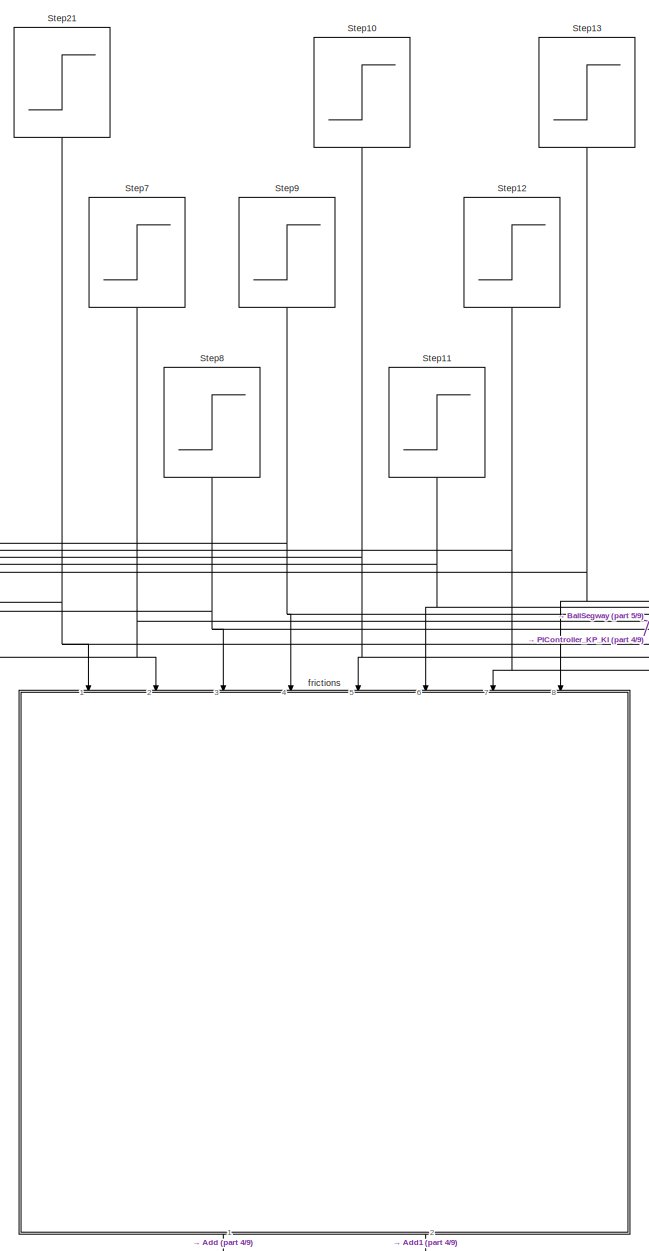
[diagram: root canvas - part 1/9, top left region]
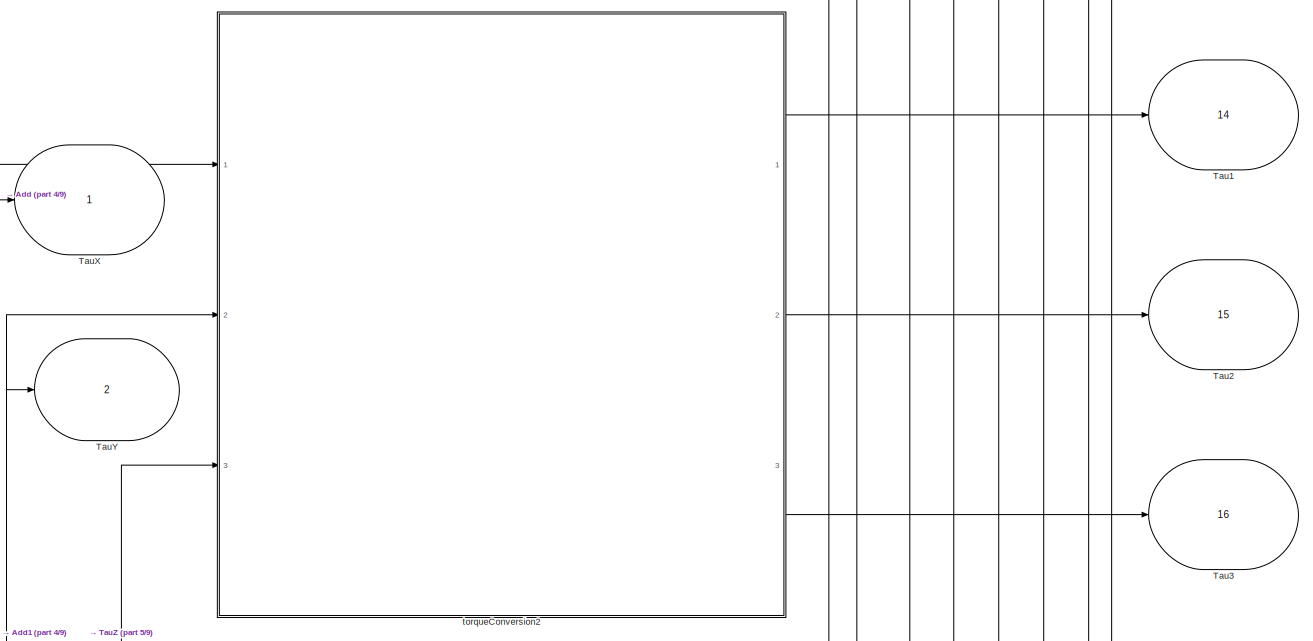
[diagram: root canvas - part 2/9, top center region]
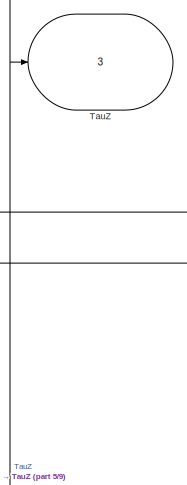
[diagram: root canvas - part 3/9, central region]
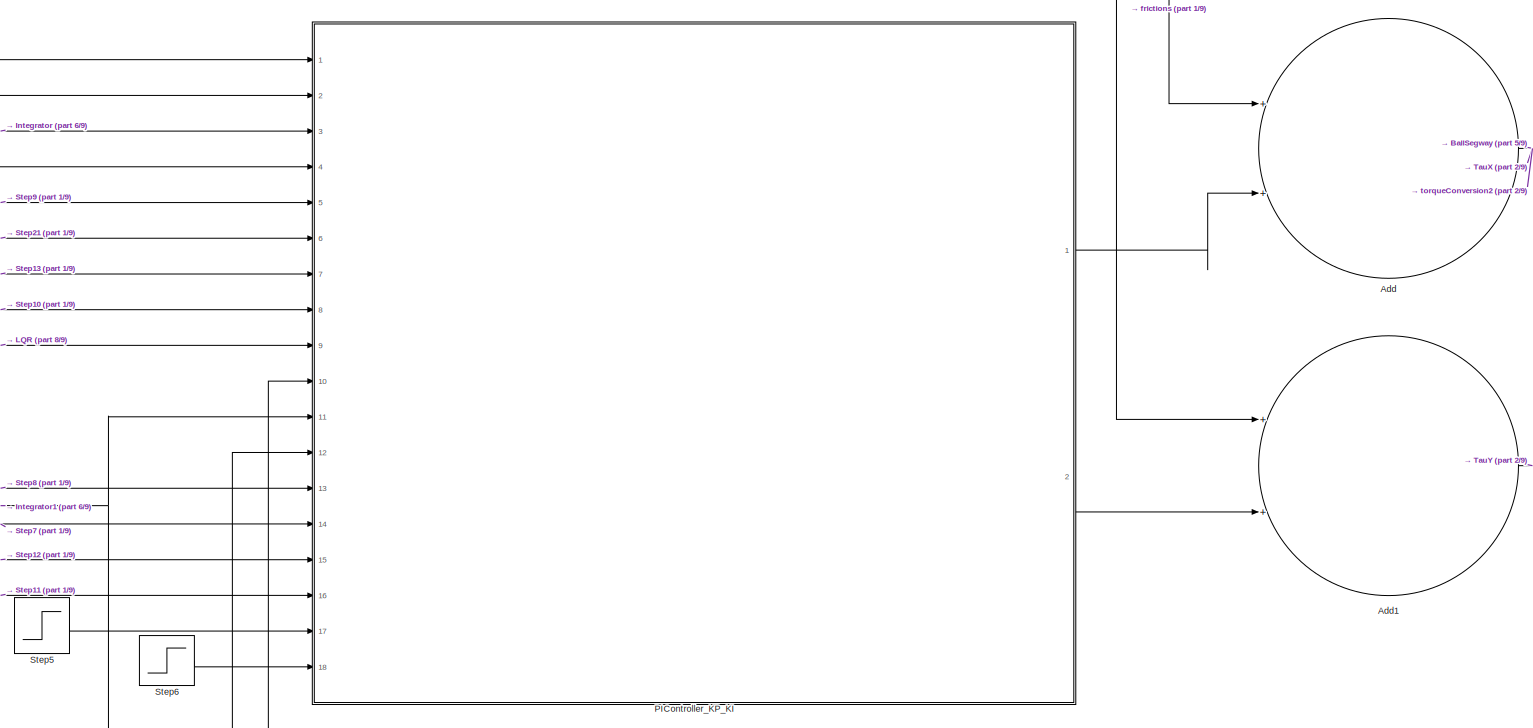
[diagram: root canvas - part 4/9, central region]
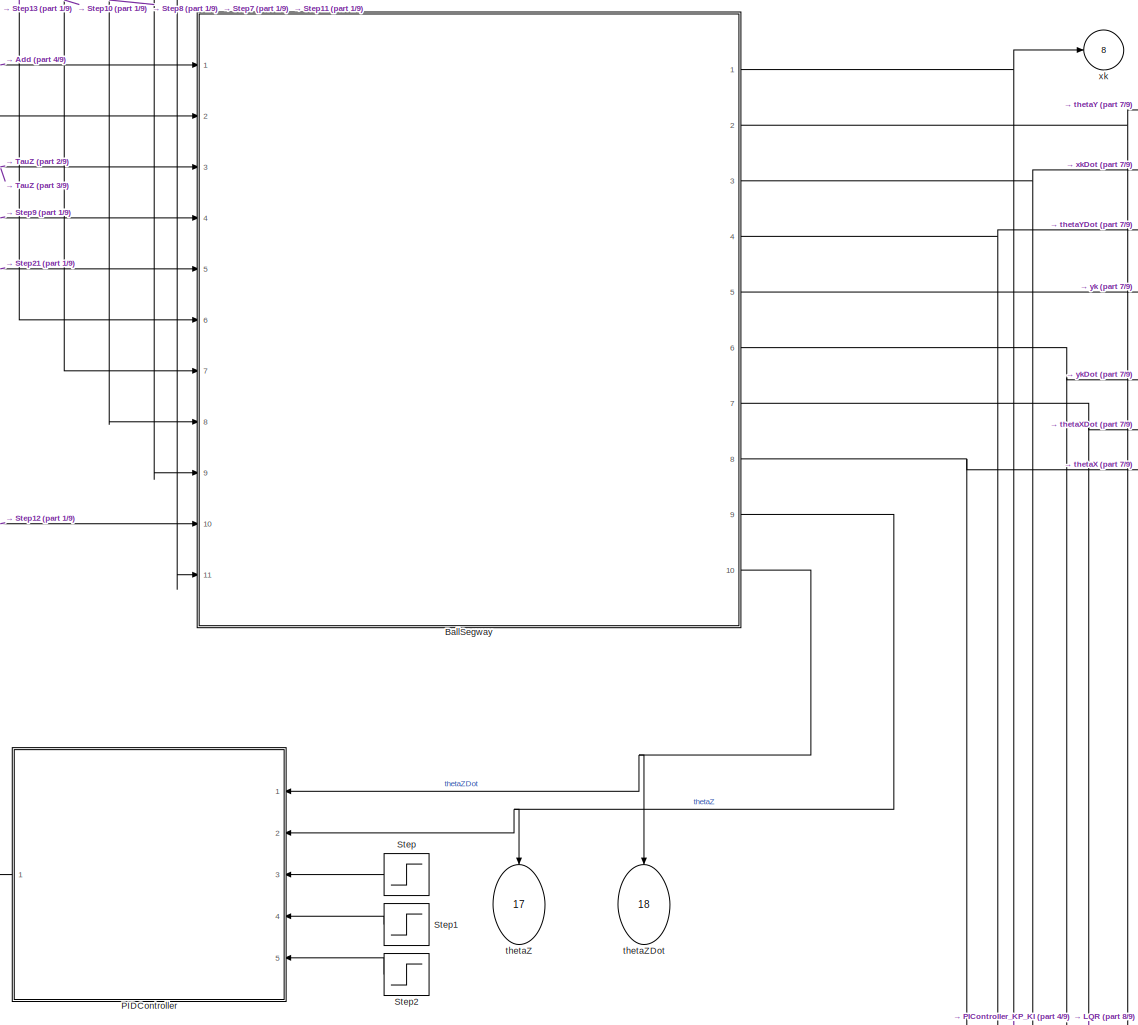
[diagram: root canvas - part 5/9, middle right region]
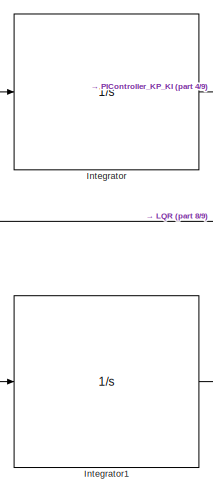
[diagram: root canvas - part 6/9, middle left region]
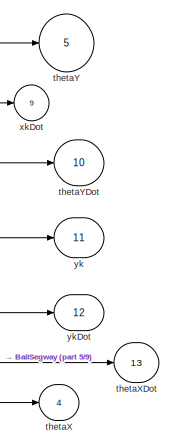
[diagram: root canvas - part 7/9, middle right region]
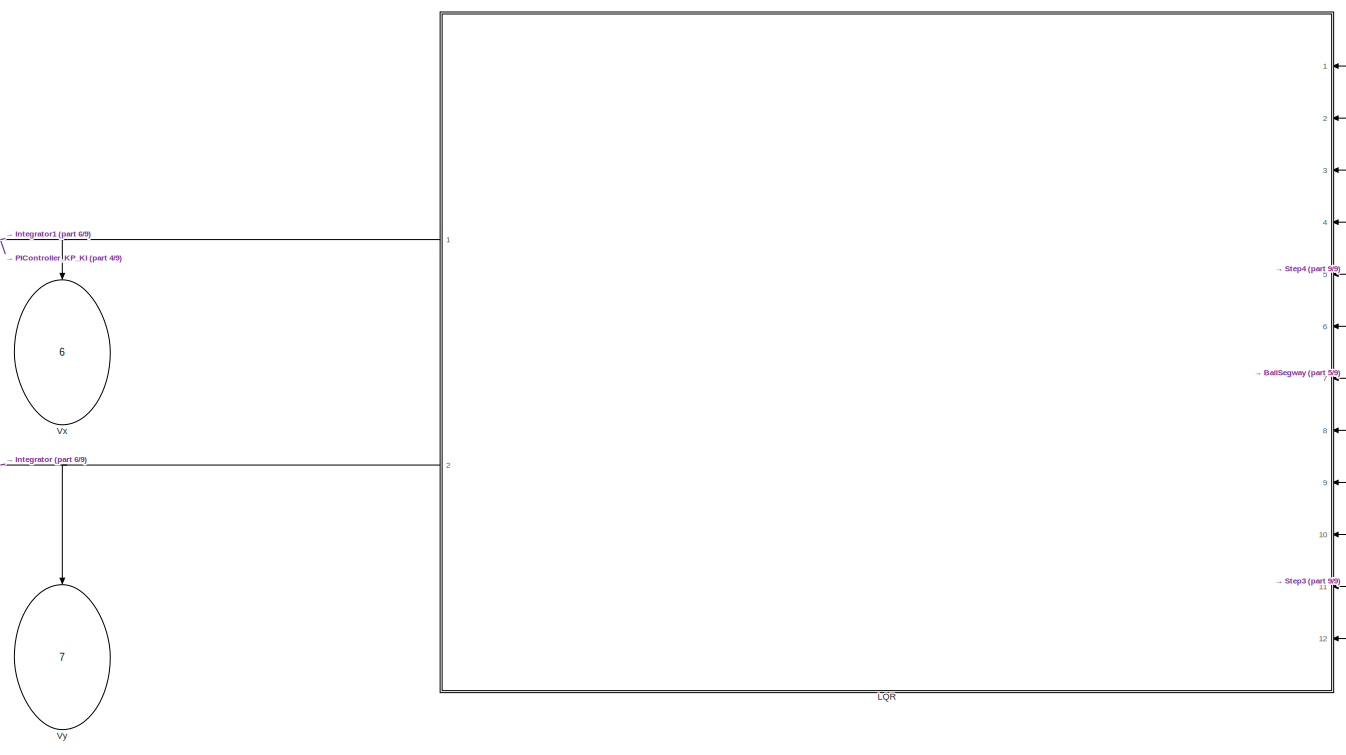
[diagram: root canvas - part 8/9, bottom right region]
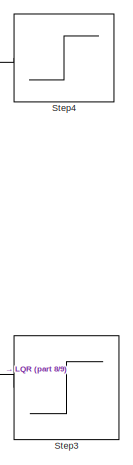
[diagram: root canvas - part 9/9, bottom right region]
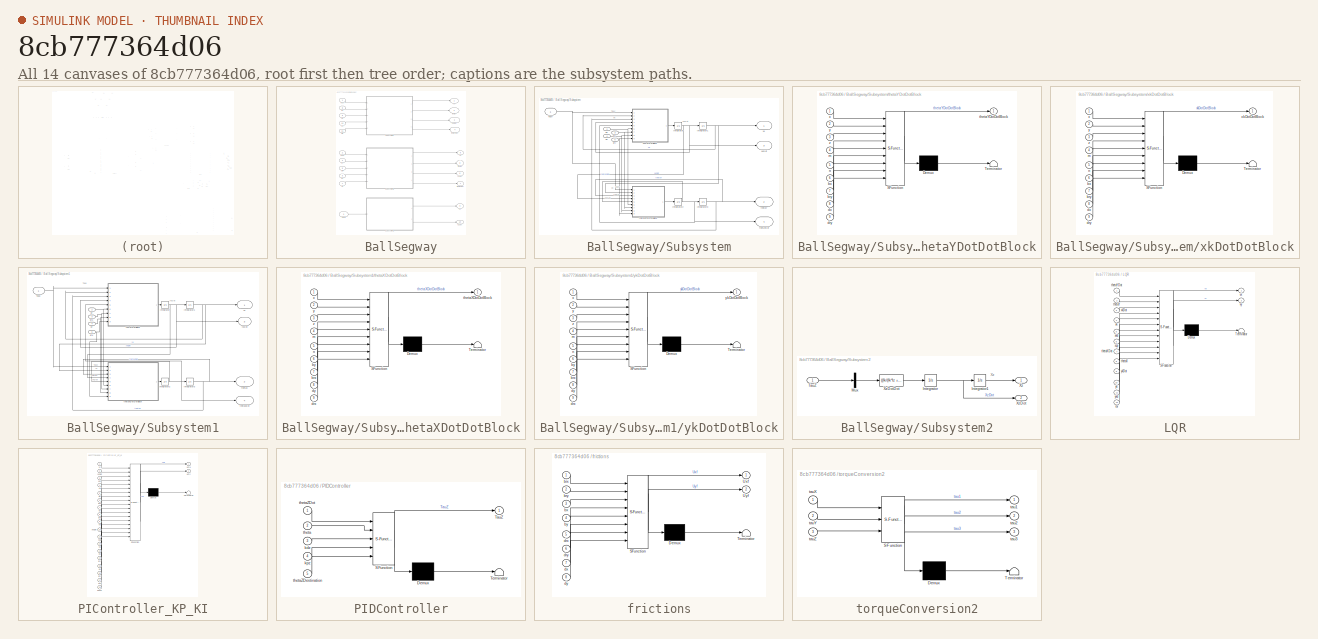
[diagram: thumbnail index - all 14 canvases of the model, root first then tree order]
MODEL slx_8cb777364d06
KIND model
CONFIG AbsTol = auto
CONFIG EnableMultiTasking = off
CONFIG FixedStep = auto
CONFIG MaxStep = auto
CONFIG MinStep = auto
CONFIG RelTol = 1e-3
CONFIG SampleTimeConstraint = Unconstrained
CONFIG Solver = VariableStepAuto
CONFIG SolverName = VariableStepAuto
CONFIG StartTime = 0.0
CONFIG StopTime = 10
BLOCK [Sum] Add
  InputSameDT = off
  OutDataTypeStr = Inherit: Inherit via internal rule
  Ports = [2, 1]
  SaturateOnIntegerOverflow = off
BLOCK [Sum] Add1
  InputSameDT = off
  OutDataTypeStr = Inherit: Inherit via internal rule
  Ports = [2, 1]
  SaturateOnIntegerOverflow = off
BLOCK [SubSystem] BallSegway
  Ports = [11, 10]
  RequestExecContextInheritance = off
BLOCK [SubSystem] BallSegway/Subsystem
  Ports = [5, 4]
  RequestExecContextInheritance = off
BLOCK [Integrator] BallSegway/Subsystem/Integrator
  Ports = [1, 1]
BLOCK [Integrator] BallSegway/Subsystem/Integrator1
  Ports = [1, 1]
BLOCK [Integrator] BallSegway/Subsystem/Integrator2
  Ports = [1, 1]
BLOCK [Integrator] BallSegway/Subsystem/Integrator3
  InitialCondition = (0.1/180)*pi
  Ports = [1, 1]
BLOCK [Inport] BallSegway/Subsystem/TauY
  IconDisplay = Port number
BLOCK [Inport] BallSegway/Subsystem/bry
  IconDisplay = Port number
  Port = 3
BLOCK [Inport] BallSegway/Subsystem/bx
  IconDisplay = Port number
  Port = 2
BLOCK [Inport] BallSegway/Subsystem/dry
  IconDisplay = Port number
  Port = 5
BLOCK [Inport] BallSegway/Subsystem/dx
  IconDisplay = Port number
  Port = 4
BLOCK [Outport] BallSegway/Subsystem/thetaY
  IconDisplay = Port number
  Port = 2
BLOCK [Outport] BallSegway/Subsystem/thetaYDot 
  IconDisplay = Port number
  Port = 4
BLOCK [SubSystem] BallSegway/Subsystem/thetaYDotDotBlock
  ErrorFcn = Stateflow.Translate.translate
  PermitHierarchicalResolution = ExplicitOnly
  Ports = [9, 1]
  RequestExecContextInheritance = off
  SFBlockType = MATLAB Function
  TreatAsAtomicUnit = on
BLOCK [Demux] BallSegway/Subsystem/thetaYDotDotBlock/ Demux 
  Outputs = 1
  Ports = [1, 1]
BLOCK [S-Function] BallSegway/Subsystem/thetaYDotDotBlock/ SFunction 
  EnableBusSupport = on
  FunctionName = sf_sfun
  PortCounts = [9 2]
  Ports = [9, 2]
  SFcnIsStateOwnerBlock = off
  SFunctionDeploymentMode = off
  Tag = Stateflow S-Function AllProject 3
BLOCK [Terminator] BallSegway/Subsystem/thetaYDotDotBlock/ Terminator 
BLOCK [Inport] BallSegway/Subsystem/thetaYDotDotBlock/bry
  IconDisplay = Port number
  Port = 7
BLOCK [Inport] BallSegway/Subsystem/thetaYDotDotBlock/bx
  IconDisplay = Port number
  Port = 6
BLOCK [Inport] BallSegway/Subsystem/thetaYDotDotBlock/dry
  IconDisplay = Port number
  Port = 9
BLOCK [Inport] BallSegway/Subsystem/thetaYDotDotBlock/dx
  IconDisplay = Port number
  Port = 8
BLOCK [Inport] BallSegway/Subsystem/thetaYDotDotBlock/m
  IconDisplay = Port number
  Port = 4
BLOCK [Inport] BallSegway/Subsystem/thetaYDotDotBlock/n
  IconDisplay = Port number
  Port = 5
BLOCK [Outport] BallSegway/Subsystem/thetaYDotDotBlock/thetaYDotDotBlock
  IconDisplay = Port number
BLOCK [Inport] BallSegway/Subsystem/thetaYDotDotBlock/x
  IconDisplay = Port number
BLOCK [Inport] BallSegway/Subsystem/thetaYDotDotBlock/y
  IconDisplay = Port number
  Port = 2
BLOCK [Inport] BallSegway/Subsystem/thetaYDotDotBlock/z
  IconDisplay = Port number
  Port = 3
BLOCK [Outport] BallSegway/Subsystem/xk
  IconDisplay = Port number
BLOCK [Outport] BallSegway/Subsystem/xkDot
  IconDisplay = Port number
  Port = 3
BLOCK [SubSystem] BallSegway/Subsystem/xkDotDotBlock
  ErrorFcn = Stateflow.Translate.translate
  PermitHierarchicalResolution = ExplicitOnly
  Ports = [9, 1]
  RequestExecContextInheritance = off
  SFBlockType = MATLAB Function
  TreatAsAtomicUnit = on
BLOCK [Demux] BallSegway/Subsystem/xkDotDotBlock/ Demux 
  Outputs = 1
  Ports = [1, 1]
BLOCK [S-Function] BallSegway/Subsystem/xkDotDotBlock/ SFunction 
  EnableBusSupport = on
  FunctionName = sf_sfun
  PortCounts = [9 2]
  Ports = [9, 2]
  SFcnIsStateOwnerBlock = off
  SFunctionDeploymentMode = off
  Tag = Stateflow S-Function AllProject 10
BLOCK [Terminator] BallSegway/Subsystem/xkDotDotBlock/ Terminator 
BLOCK [Inport] BallSegway/Subsystem/xkDotDotBlock/bry
  IconDisplay = Port number
  Port = 7
BLOCK [Inport] BallSegway/Subsystem/xkDotDotBlock/bx
  IconDisplay = Port number
  Port = 6
BLOCK [Inport] BallSegway/Subsystem/xkDotDotBlock/dry
  IconDisplay = Port number
  Port = 9
BLOCK [Inport] BallSegway/Subsystem/xkDotDotBlock/dx
  IconDisplay = Port number
  Port = 8
BLOCK [Inport] BallSegway/Subsystem/xkDotDotBlock/m
  IconDisplay = Port number
  Port = 4
BLOCK [Inport] BallSegway/Subsystem/xkDotDotBlock/n
  IconDisplay = Port number
  Port = 5
BLOCK [Inport] BallSegway/Subsystem/xkDotDotBlock/x
  IconDisplay = Port number
BLOCK [Outport] BallSegway/Subsystem/xkDotDotBlock/xkDotDotBlock
  IconDisplay = Port number
BLOCK [Inport] BallSegway/Subsystem/xkDotDotBlock/y
  IconDisplay = Port number
  Port = 2
BLOCK [Inport] BallSegway/Subsystem/xkDotDotBlock/z
  IconDisplay = Port number
  Port = 3
BLOCK [SubSystem] BallSegway/Subsystem1
  Ports = [5, 4]
  RequestExecContextInheritance = off
BLOCK [Integrator] BallSegway/Subsystem1/Integrator
  Ports = [1, 1]
BLOCK [Integrator] BallSegway/Subsystem1/Integrator1
  Ports = [1, 1]
BLOCK [Integrator] BallSegway/Subsystem1/Integrator2
  Ports = [1, 1]
BLOCK [Integrator] BallSegway/Subsystem1/Integrator3
  InitialCondition = (0.1/180)*pi
  Ports = [1, 1]
BLOCK [Inport] BallSegway/Subsystem1/Taux
  IconDisplay = Port number
BLOCK [Inport] BallSegway/Subsystem1/brx
  IconDisplay = Port number
  Port = 3
BLOCK [Inport] BallSegway/Subsystem1/by
  IconDisplay = Port number
  Port = 2
BLOCK [Inport] BallSegway/Subsystem1/drx
  IconDisplay = Port number
  Port = 5
BLOCK [Inport] BallSegway/Subsystem1/dy
  IconDisplay = Port number
  Port = 4
BLOCK [Outport] BallSegway/Subsystem1/thetaX
  IconDisplay = Port number
  Port = 2
BLOCK [Outport] BallSegway/Subsystem1/thetaXDot 
  IconDisplay = Port number
  Port = 4
BLOCK [SubSystem] BallSegway/Subsystem1/thetaXDotDotBlock
  ErrorFcn = Stateflow.Translate.translate
  PermitHierarchicalResolution = ExplicitOnly
  Ports = [9, 1]
  RequestExecContextInheritance = off
  SFBlockType = MATLAB Function
  TreatAsAtomicUnit = on
BLOCK [Demux] BallSegway/Subsystem1/thetaXDotDotBlock/ Demux 
  Outputs = 1
  Ports = [1, 1]
BLOCK [S-Function] BallSegway/Subsystem1/thetaXDotDotBlock/ SFunction 
  EnableBusSupport = on
  FunctionName = sf_sfun
  PortCounts = [9 2]
  Ports = [9, 2]
  SFcnIsStateOwnerBlock = off
  SFunctionDeploymentMode = off
  Tag = Stateflow S-Function AllProject 1
BLOCK [Terminator] BallSegway/Subsystem1/thetaXDotDotBlock/ Terminator 
BLOCK [Inport] BallSegway/Subsystem1/thetaXDotDotBlock/brx
  IconDisplay = Port number
  Port = 7
BLOCK [Inport] BallSegway/Subsystem1/thetaXDotDotBlock/by
  IconDisplay = Port number
  Port = 6
BLOCK [Inport] BallSegway/Subsystem1/thetaXDotDotBlock/drx
  IconDisplay = Port number
  Port = 9
BLOCK [Inport] BallSegway/Subsystem1/thetaXDotDotBlock/dy
  IconDisplay = Port number
  Port = 8
BLOCK [Inport] BallSegway/Subsystem1/thetaXDotDotBlock/m
  IconDisplay = Port number
  Port = 4
BLOCK [Inport] BallSegway/Subsystem1/thetaXDotDotBlock/n
  IconDisplay = Port number
  Port = 5
BLOCK [Outport] BallSegway/Subsystem1/thetaXDotDotBlock/thetaXDotDotBlock
  IconDisplay = Port number
BLOCK [Inport] BallSegway/Subsystem1/thetaXDotDotBlock/x
  IconDisplay = Port number
BLOCK [Inport] BallSegway/Subsystem1/thetaXDotDotBlock/y
  IconDisplay = Port number
  Port = 2
BLOCK [Inport] BallSegway/Subsystem1/thetaXDotDotBlock/z
  IconDisplay = Port number
  Port = 3
BLOCK [Outport] BallSegway/Subsystem1/yk
  IconDisplay = Port number
BLOCK [Outport] BallSegway/Subsystem1/ykDot
  IconDisplay = Port number
  Port = 3
BLOCK [SubSystem] BallSegway/Subsystem1/ykDotDotBlock
  ErrorFcn = Stateflow.Translate.translate
  PermitHierarchicalResolution = ExplicitOnly
  Ports = [9, 1]
  RequestExecContextInheritance = off
  SFBlockType = MATLAB Function
  TreatAsAtomicUnit = on
BLOCK [Demux] BallSegway/Subsystem1/ykDotDotBlock/ Demux 
  Outputs = 1
  Ports = [1, 1]
BLOCK [S-Function] BallSegway/Subsystem1/ykDotDotBlock/ SFunction 
  EnableBusSupport = on
  FunctionName = sf_sfun
  PortCounts = [9 2]
  Ports = [9, 2]
  SFcnIsStateOwnerBlock = off
  SFunctionDeploymentMode = off
  Tag = Stateflow S-Function AllProject 9
BLOCK [Terminator] BallSegway/Subsystem1/ykDotDotBlock/ Terminator 
BLOCK [Inport] BallSegway/Subsystem1/ykDotDotBlock/brx
  IconDisplay = Port number
  Port = 7
BLOCK [Inport] BallSegway/Subsystem1/ykDotDotBlock/by
  IconDisplay = Port number
  Port = 6
BLOCK [Inport] BallSegway/Subsystem1/ykDotDotBlock/drx
  IconDisplay = Port number
  Port = 9
BLOCK [Inport] BallSegway/Subsystem1/ykDotDotBlock/dy
  IconDisplay = Port number
  Port = 8
BLOCK [Inport] BallSegway/Subsystem1/ykDotDotBlock/m
  IconDisplay = Port number
  Port = 4
BLOCK [Inport] BallSegway/Subsystem1/ykDotDotBlock/n
  IconDisplay = Port number
  Port = 5
BLOCK [Inport] BallSegway/Subsystem1/ykDotDotBlock/x
  IconDisplay = Port number
BLOCK [Inport] BallSegway/Subsystem1/ykDotDotBlock/y
  IconDisplay = Port number
  Port = 2
BLOCK [Outport] BallSegway/Subsystem1/ykDotDotBlock/ykDotDotBlock
  IconDisplay = Port number
BLOCK [Inport] BallSegway/Subsystem1/ykDotDotBlock/z
  IconDisplay = Port number
  Port = 3
BLOCK [SubSystem] BallSegway/Subsystem2
  Ports = [1, 2]
  RequestExecContextInheritance = off
BLOCK [Integrator] BallSegway/Subsystem2/Integrator
  ContinuousStateAttributes = 'XzDot'
  Ports = [1, 1]
BLOCK [Integrator] BallSegway/Subsystem2/Integrator1
  ContinuousStateAttributes = 'Xz'
  Ports = [1, 1]
BLOCK [Mux] BallSegway/Subsystem2/Mux
  DisplayOption = bar
  Inputs = 1
  Ports = [1, 1]
BLOCK [Inport] BallSegway/Subsystem2/TauZ
  IconDisplay = Port number
BLOCK [Outport] BallSegway/Subsystem2/Xz
  IconDisplay = Port number
BLOCK [Outport] BallSegway/Subsystem2/XzDot
  IconDisplay = Port number
  Port = 2
BLOCK [Fcn] BallSegway/Subsystem2/XzDotDot
  Expr = ((Ik/(Ik*Iz + 3*(Ik+Iz)*Iw*((rk^2)/(rw^2))*(sin(alphaTemperature)^2)))*(rk/rw))*u(1)
BLOCK [Inport] BallSegway/TauY
  IconDisplay = Port number
BLOCK [Inport] BallSegway/TauZ
  IconDisplay = Port number
  Port = 3
BLOCK [Inport] BallSegway/Taux
  IconDisplay = Port number
  Port = 2
BLOCK [Outport] BallSegway/Xz
  IconDisplay = Port number
  Port = 9
BLOCK [Outport] BallSegway/XzDot
  IconDisplay = Port number
  Port = 10
BLOCK [Inport] BallSegway/brx
  IconDisplay = Port number
  Port = 5
BLOCK [Inport] BallSegway/bry
  IconDisplay = Port number
  Port = 9
BLOCK [Inport] BallSegway/bx
  IconDisplay = Port number
  Port = 8
BLOCK [Inport] BallSegway/by
  IconDisplay = Port number
  Port = 4
BLOCK [Inport] BallSegway/drx
  IconDisplay = Port number
  Port = 7
BLOCK [Inport] BallSegway/dry
  IconDisplay = Port number
  Port = 11
BLOCK [Inport] BallSegway/dx
  IconDisplay = Port number
  Port = 10
BLOCK [Inport] BallSegway/dy
  IconDisplay = Port number
  Port = 6
BLOCK [Outport] BallSegway/thetaX 
  IconDisplay = Port number
  Port = 8
BLOCK [Outport] BallSegway/thetaXDot 
  IconDisplay = Port number
  Port = 7
BLOCK [Outport] BallSegway/thetaY
  IconDisplay = Port number
  Port = 2
BLOCK [Outport] BallSegway/thetaYDot 
  IconDisplay = Port number
  Port = 4
BLOCK [Outport] BallSegway/xk
  IconDisplay = Port number
BLOCK [Outport] BallSegway/xkDot
  IconDisplay = Port number
  Port = 3
BLOCK [Outport] BallSegway/yk
  IconDisplay = Port number
  Port = 5
BLOCK [Outport] BallSegway/ykDot
  IconDisplay = Port number
  Port = 6
BLOCK [Integrator] Integrator
  Ports = [1, 1]
BLOCK [Integrator] Integrator1
  Ports = [1, 1]
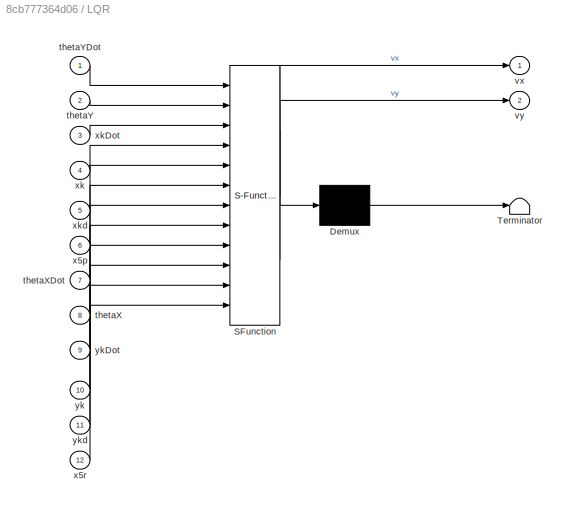
BLOCK [SubSystem] LQR
  ErrorFcn = Stateflow.Translate.translate
  PermitHierarchicalResolution = ExplicitOnly
  Ports = [12, 2]
  RequestExecContextInheritance = off
  SFBlockType = MATLAB Function
  TreatAsAtomicUnit = on
BLOCK [Demux] LQR/ Demux 
  Outputs = 1
  Ports = [1, 1]
BLOCK [S-Function] LQR/ SFunction 
  EnableBusSupport = on
  FunctionName = sf_sfun
  PortCounts = [12 3]
  Ports = [12, 3]
  SFcnIsStateOwnerBlock = off
  SFunctionDeploymentMode = off
  Tag = Stateflow S-Function AllProject 7
BLOCK [Terminator] LQR/ Terminator 
BLOCK [Inport] LQR/thetaX
  IconDisplay = Port number
  Port = 8
BLOCK [Inport] LQR/thetaXDot
  IconDisplay = Port number
  Port = 7
BLOCK [Inport] LQR/thetaY
  IconDisplay = Port number
  Port = 2
BLOCK [Inport] LQR/thetaYDot
  IconDisplay = Port number
BLOCK [Outport] LQR/vx
  IconDisplay = Port number
BLOCK [Outport] LQR/vy
  IconDisplay = Port number
  Port = 2
BLOCK [Inport] LQR/x5p
  IconDisplay = Port number
  Port = 6
BLOCK [Inport] LQR/x5r
  IconDisplay = Port number
  Port = 12
BLOCK [Inport] LQR/xk
  IconDisplay = Port number
  Port = 4
BLOCK [Inport] LQR/xkDot
  IconDisplay = Port number
  Port = 3
BLOCK [Inport] LQR/xkd
  IconDisplay = Port number
  Port = 5
BLOCK [Inport] LQR/yk
  IconDisplay = Port number
  Port = 10
BLOCK [Inport] LQR/ykDot
  IconDisplay = Port number
  Port = 9
BLOCK [Inport] LQR/ykd
  IconDisplay = Port number
  Port = 11
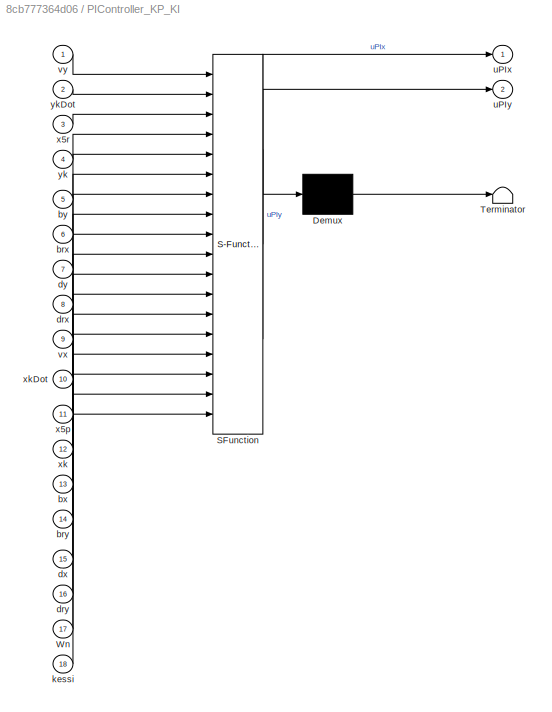
BLOCK [SubSystem] PIController_KP_KI
  ErrorFcn = Stateflow.Translate.translate
  PermitHierarchicalResolution = ExplicitOnly
  Ports = [18, 2]
  RequestExecContextInheritance = off
  SFBlockType = MATLAB Function
  TreatAsAtomicUnit = on
BLOCK [Demux] PIController_KP_KI/ Demux 
  Outputs = 1
  Ports = [1, 1]
BLOCK [S-Function] PIController_KP_KI/ SFunction 
  EnableBusSupport = on
  FunctionName = sf_sfun
  PortCounts = [18 3]
  Ports = [18, 3]
  SFcnIsStateOwnerBlock = off
  SFunctionDeploymentMode = off
  Tag = Stateflow S-Function AllProject 6
BLOCK [Terminator] PIController_KP_KI/ Terminator 
BLOCK [Inport] PIController_KP_KI/Wn
  IconDisplay = Port number
  Port = 17
BLOCK [Inport] PIController_KP_KI/brx
  IconDisplay = Port number
  Port = 6
BLOCK [Inport] PIController_KP_KI/bry
  IconDisplay = Port number
  Port = 14
BLOCK [Inport] PIController_KP_KI/bx
  IconDisplay = Port number
  Port = 13
BLOCK [Inport] PIController_KP_KI/by
  IconDisplay = Port number
  Port = 5
BLOCK [Inport] PIController_KP_KI/drx
  IconDisplay = Port number
  Port = 8
BLOCK [Inport] PIController_KP_KI/dry
  IconDisplay = Port number
  Port = 16
BLOCK [Inport] PIController_KP_KI/dx
  IconDisplay = Port number
  Port = 15
BLOCK [Inport] PIController_KP_KI/dy
  IconDisplay = Port number
  Port = 7
BLOCK [Inport] PIController_KP_KI/kessi
  IconDisplay = Port number
  Port = 18
BLOCK [Outport] PIController_KP_KI/uPIx
  IconDisplay = Port number
BLOCK [Outport] PIController_KP_KI/uPIy
  IconDisplay = Port number
  Port = 2
BLOCK [Inport] PIController_KP_KI/vx
  IconDisplay = Port number
  Port = 9
BLOCK [Inport] PIController_KP_KI/vy
  IconDisplay = Port number
BLOCK [Inport] PIController_KP_KI/x5p
  IconDisplay = Port number
  Port = 11
BLOCK [Inport] PIController_KP_KI/x5r
  IconDisplay = Port number
  Port = 3
BLOCK [Inport] PIController_KP_KI/xk
  IconDisplay = Port number
  Port = 12
BLOCK [Inport] PIController_KP_KI/xkDot
  IconDisplay = Port number
  Port = 10
BLOCK [Inport] PIController_KP_KI/yk
  IconDisplay = Port number
  Port = 4
BLOCK [Inport] PIController_KP_KI/ykDot
  IconDisplay = Port number
  Port = 2
BLOCK [SubSystem] PIDController
  ErrorFcn = Stateflow.Translate.translate
  PermitHierarchicalResolution = ExplicitOnly
  Ports = [5, 1]
  RequestExecContextInheritance = off
  SFBlockType = MATLAB Function
  TreatAsAtomicUnit = on
BLOCK [Demux] PIDController/ Demux 
  Outputs = 1
  Ports = [1, 1]
BLOCK [S-Function] PIDController/ SFunction 
  EnableBusSupport = on
  FunctionName = sf_sfun
  PortCounts = [5 2]
  Ports = [5, 2]
  SFcnIsStateOwnerBlock = off
  SFunctionDeploymentMode = off
  Tag = Stateflow S-Function AllProject 5
BLOCK [Terminator] PIDController/ Terminator 
BLOCK [Outport] PIDController/TauZ
  IconDisplay = Port number
BLOCK [Inport] PIDController/kdz
  IconDisplay = Port number
  Port = 3
BLOCK [Inport] PIDController/kpz
  IconDisplay = Port number
  Port = 4
BLOCK [Inport] PIDController/theta
  IconDisplay = Port number
  Port = 2
BLOCK [Inport] PIDController/thetaZDestination
  IconDisplay = Port number
  Port = 5
BLOCK [Inport] PIDController/thetaZDot
  IconDisplay = Port number
BLOCK [Step] Step
  SampleTime = 0
BLOCK [Step] Step1
  SampleTime = 0
BLOCK [Step] Step10
  After = 1000
  SampleTime = 0
BLOCK [Step] Step11
  After = 1000
  SampleTime = 0
BLOCK [Step] Step12
  After = 1000
  SampleTime = 0
BLOCK [Step] Step13
  After = 1000
  SampleTime = 0
BLOCK [Step] Step2
  After = pi/6
  SampleTime = 0
BLOCK [Step] Step21
  After = 100
  SampleTime = 0
BLOCK [Step] Step3
  After = 0
  SampleTime = 0
  Time = 0
BLOCK [Step] Step4
  After = 0
  SampleTime = 0
  Time = 0
BLOCK [Step] Step5
  After = 2.5
  SampleTime = 0
BLOCK [Step] Step6
  After = 0.2
  SampleTime = 0
BLOCK [Step] Step7
  After = 100
  SampleTime = 0
BLOCK [Step] Step8
  After = 100
  SampleTime = 0
BLOCK [Step] Step9
  After = 100
  SampleTime = 0
BLOCK [Outport] Tau1
  IconDisplay = Port number
  Port = 14
BLOCK [Outport] Tau2
  IconDisplay = Port number
  Port = 15
BLOCK [Outport] Tau3
  IconDisplay = Port number
  Port = 16
BLOCK [Outport] TauX
  IconDisplay = Port number
BLOCK [Outport] TauY
  IconDisplay = Port number
  Port = 2
BLOCK [Outport] TauZ
  IconDisplay = Port number
  Port = 3
BLOCK [Outport] Vx
  IconDisplay = Port number
  Port = 6
BLOCK [Outport] Vy
  IconDisplay = Port number
  Port = 7
BLOCK [SubSystem] frictions
  ErrorFcn = Stateflow.Translate.translate
  PermitHierarchicalResolution = ExplicitOnly
  Ports = [8, 2]
  RequestExecContextInheritance = off
  SFBlockType = MATLAB Function
  TreatAsAtomicUnit = on
BLOCK [Demux] frictions/ Demux 
  Outputs = 1
  Ports = [1, 1]
BLOCK [S-Function] frictions/ SFunction 
  EnableBusSupport = on
  FunctionName = sf_sfun
  PortCounts = [8 3]
  Ports = [8, 3]
  SFcnIsStateOwnerBlock = off
  SFunctionDeploymentMode = off
  Tag = Stateflow S-Function AllProject 4
BLOCK [Terminator] frictions/ Terminator 
BLOCK [Outport] frictions/Uxf
  IconDisplay = Port number
BLOCK [Outport] frictions/Uyf
  IconDisplay = Port number
  Port = 2
BLOCK [Inport] frictions/brx
  IconDisplay = Port number
BLOCK [Inport] frictions/bry
  IconDisplay = Port number
  Port = 2
BLOCK [Inport] frictions/bx
  IconDisplay = Port number
  Port = 3
BLOCK [Inport] frictions/by
  IconDisplay = Port number
  Port = 4
BLOCK [Inport] frictions/drx
  IconDisplay = Port number
  Port = 5
BLOCK [Inport] frictions/dry
  IconDisplay = Port number
  Port = 6
BLOCK [Inport] frictions/dx
  IconDisplay = Port number
  Port = 7
BLOCK [Inport] frictions/dy
  IconDisplay = Port number
  Port = 8
BLOCK [Outport] thetaX
  IconDisplay = Port number
  Port = 4
BLOCK [Outport] thetaXDot
  IconDisplay = Port number
  Port = 13
BLOCK [Outport] thetaY
  IconDisplay = Port number
  Port = 5
BLOCK [Outport] thetaYDot
  IconDisplay = Port number
  Port = 10
BLOCK [Outport] thetaZ
  IconDisplay = Port number
  Port = 17
BLOCK [Outport] thetaZDot
  IconDisplay = Port number
  Port = 18
BLOCK [SubSystem] torqueConversion2
  ErrorFcn = Stateflow.Translate.translate
  PermitHierarchicalResolution = ExplicitOnly
  Ports = [3, 3]
  RequestExecContextInheritance = off
  SFBlockType = MATLAB Function
  TreatAsAtomicUnit = on
BLOCK [Demux] torqueConversion2/ Demux 
  Outputs = 1
  Ports = [1, 1]
BLOCK [S-Function] torqueConversion2/ SFunction 
  EnableBusSupport = on
  FunctionName = sf_sfun
  PortCounts = [3 4]
  Ports = [3, 4]
  SFcnIsStateOwnerBlock = off
  SFunctionDeploymentMode = off
  Tag = Stateflow S-Function AllProject 8
BLOCK [Terminator] torqueConversion2/ Terminator 
BLOCK [Outport] torqueConversion2/tau1
  IconDisplay = Port number
BLOCK [Outport] torqueConversion2/tau2
  IconDisplay = Port number
  Port = 2
BLOCK [Outport] torqueConversion2/tau3
  IconDisplay = Port number
  Port = 3
BLOCK [Inport] torqueConversion2/tauX
  IconDisplay = Port number
BLOCK [Inport] torqueConversion2/tauY
  IconDisplay = Port number
  Port = 2
BLOCK [Inport] torqueConversion2/tauZ
  IconDisplay = Port number
  Port = 3
BLOCK [Outport] xk
  IconDisplay = Port number
  Port = 8
BLOCK [Outport] xkDot
  IconDisplay = Port number
  Port = 9
BLOCK [Outport] yk
  IconDisplay = Port number
  Port = 11
BLOCK [Outport] ykDot
  IconDisplay = Port number
  Port = 12
ANNOTATION BallSegway/Subsystem: TauY
ANNOTATION BallSegway/Subsystem: thetaY
ANNOTATION BallSegway/Subsystem: xk
ANNOTATION BallSegway/Subsystem: xkDot
ANNOTATION BallSegway/Subsystem1: TauX
ANNOTATION BallSegway/Subsystem1: Taux
ANNOTATION BallSegway/Subsystem1: thetaX
ANNOTATION BallSegway/Subsystem1: yk
ANNOTATION BallSegway/Subsystem1: ykDot
ANNOTATION BallSegway/Subsystem2: Xz
NET Add1:1 -> TauY:1, torqueConversion2:2
NET Add:1 -> BallSegway:1, BallSegway:2, TauX:1, torqueConversion2:1
NET BallSegway/Subsystem/Integrator1:1 -> BallSegway/Subsystem/thetaYDotDotBlock:2, BallSegway/Subsystem/xk:1, BallSegway/Subsystem/xkDotDotBlock:2
NET BallSegway/Subsystem/Integrator2:1 -> BallSegway/Subsystem/Integrator3:1, BallSegway/Subsystem/thetaYDot :1, BallSegway/Subsystem/thetaYDotDotBlock:5, BallSegway/Subsystem/xkDotDotBlock:5
NET BallSegway/Subsystem/Integrator3:1 -> BallSegway/Subsystem/thetaY:1, BallSegway/Subsystem/thetaYDotDotBlock:3, BallSegway/Subsystem/xkDotDotBlock:3
NET BallSegway/Subsystem/Integrator:1 -> BallSegway/Subsystem/Integrator1:1, BallSegway/Subsystem/thetaYDotDotBlock:4, BallSegway/Subsystem/xkDot:1, BallSegway/Subsystem/xkDotDotBlock:4
NET BallSegway/Subsystem/TauY:1 -> BallSegway/Subsystem/thetaYDotDotBlock:1, BallSegway/Subsystem/xkDotDotBlock:1
NET BallSegway/Subsystem/bry:1 -> BallSegway/Subsystem/thetaYDotDotBlock:7, BallSegway/Subsystem/xkDotDotBlock:7
NET BallSegway/Subsystem/bx:1 -> BallSegway/Subsystem/thetaYDotDotBlock:6, BallSegway/Subsystem/xkDotDotBlock:6
NET BallSegway/Subsystem/dry:1 -> BallSegway/Subsystem/thetaYDotDotBlock:9, BallSegway/Subsystem/xkDotDotBlock:9
NET BallSegway/Subsystem/dx:1 -> BallSegway/Subsystem/thetaYDotDotBlock:8, BallSegway/Subsystem/xkDotDotBlock:8
LINE BallSegway/Subsystem/thetaYDotDotBlock:1 -> BallSegway/Subsystem/Integrator2:1
LINE BallSegway/Subsystem/xkDotDotBlock:1 -> BallSegway/Subsystem/Integrator:1
NET BallSegway/Subsystem1/Integrator1:1 -> BallSegway/Subsystem1/thetaXDotDotBlock:2, BallSegway/Subsystem1/yk:1, BallSegway/Subsystem1/ykDotDotBlock:2
NET BallSegway/Subsystem1/Integrator2:1 -> BallSegway/Subsystem1/Integrator3:1, BallSegway/Subsystem1/thetaXDot :1, BallSegway/Subsystem1/thetaXDotDotBlock:5, BallSegway/Subsystem1/ykDotDotBlock:5
NET BallSegway/Subsystem1/Integrator3:1 -> BallSegway/Subsystem1/thetaX:1, BallSegway/Subsystem1/thetaXDotDotBlock:3, BallSegway/Subsystem1/ykDotDotBlock:3
NET BallSegway/Subsystem1/Integrator:1 -> BallSegway/Subsystem1/Integrator1:1, BallSegway/Subsystem1/thetaXDotDotBlock:4, BallSegway/Subsystem1/ykDot:1, BallSegway/Subsystem1/ykDotDotBlock:4
NET BallSegway/Subsystem1/Taux:1 -> BallSegway/Subsystem1/thetaXDotDotBlock:1, BallSegway/Subsystem1/ykDotDotBlock:1
NET BallSegway/Subsystem1/brx:1 -> BallSegway/Subsystem1/thetaXDotDotBlock:7, BallSegway/Subsystem1/ykDotDotBlock:7
NET BallSegway/Subsystem1/by:1 -> BallSegway/Subsystem1/thetaXDotDotBlock:6, BallSegway/Subsystem1/ykDotDotBlock:6
NET BallSegway/Subsystem1/drx:1 -> BallSegway/Subsystem1/thetaXDotDotBlock:9, BallSegway/Subsystem1/ykDotDotBlock:9
NET BallSegway/Subsystem1/dy:1 -> BallSegway/Subsystem1/thetaXDotDotBlock:8, BallSegway/Subsystem1/ykDotDotBlock:8
LINE BallSegway/Subsystem1/thetaXDotDotBlock:1 -> BallSegway/Subsystem1/Integrator2:1
LINE BallSegway/Subsystem1/ykDotDotBlock:1 -> BallSegway/Subsystem1/Integrator:1
LINE BallSegway/Subsystem1:1 -> BallSegway/yk:1
LINE BallSegway/Subsystem1:2 -> BallSegway/thetaX :1
LINE BallSegway/Subsystem1:3 -> BallSegway/ykDot:1
LINE BallSegway/Subsystem1:4 -> BallSegway/thetaXDot :1
LINE BallSegway/Subsystem2/Integrator1:1 -> BallSegway/Subsystem2/Xz:1
NET BallSegway/Subsystem2/Integrator:1 -> BallSegway/Subsystem2/Integrator1:1, BallSegway/Subsystem2/XzDot:1
LINE BallSegway/Subsystem2/Mux:1 -> BallSegway/Subsystem2/XzDotDot:1
LINE BallSegway/Subsystem2/TauZ:1 -> BallSegway/Subsystem2/Mux:1
LINE BallSegway/Subsystem2/XzDotDot:1 -> BallSegway/Subsystem2/Integrator:1
LINE BallSegway/Subsystem2:1 -> BallSegway/Xz:1
LINE BallSegway/Subsystem2:2 -> BallSegway/XzDot:1
LINE BallSegway/Subsystem:1 -> BallSegway/xk:1
LINE BallSegway/Subsystem:2 -> BallSegway/thetaY:1
LINE BallSegway/Subsystem:3 -> BallSegway/xkDot:1
LINE BallSegway/Subsystem:4 -> BallSegway/thetaYDot :1
LINE BallSegway/TauY:1 -> BallSegway/Subsystem:1
LINE BallSegway/TauZ:1 -> BallSegway/Subsystem2:1
LINE BallSegway/Taux:1 -> BallSegway/Subsystem1:1
LINE BallSegway/brx:1 -> BallSegway/Subsystem1:3
LINE BallSegway/bry:1 -> BallSegway/Subsystem:3
LINE BallSegway/bx:1 -> BallSegway/Subsystem:2
LINE BallSegway/by:1 -> BallSegway/Subsystem1:2
LINE BallSegway/drx:1 -> BallSegway/Subsystem1:5
LINE BallSegway/dry:1 -> BallSegway/Subsystem:5
LINE BallSegway/dx:1 -> BallSegway/Subsystem:4
LINE BallSegway/dy:1 -> BallSegway/Subsystem1:4
NET BallSegway:1 -> LQR:4, PIController_KP_KI:12, xk:1
NET BallSegway:10 -> PIDController:1, thetaZDot:1
NET BallSegway:2 -> LQR:2, thetaY:1
NET BallSegway:3 -> LQR:3, PIController_KP_KI:10, xkDot:1
NET BallSegway:4 -> LQR:1, thetaYDot:1
NET BallSegway:5 -> LQR:10, PIController_KP_KI:4, yk:1
NET BallSegway:6 -> LQR:9, PIController_KP_KI:2, ykDot:1
NET BallSegway:7 -> LQR:7, thetaXDot:1
NET BallSegway:8 -> LQR:8, thetaX:1
NET BallSegway:9 -> PIDController:2, thetaZ:1
NET Integrator1:1 -> LQR:6, PIController_KP_KI:11
NET Integrator:1 -> LQR:12, PIController_KP_KI:3
NET LQR:1 -> Integrator1:1, PIController_KP_KI:9, Vx:1
NET LQR:2 -> Integrator:1, PIController_KP_KI:1, Vy:1
LINE PIController_KP_KI:1 -> Add:2
LINE PIController_KP_KI:2 -> Add1:2
NET PIDController:1 -> BallSegway:3, TauZ:1, torqueConversion2:3
NET Step10:1 -> BallSegway:7, PIController_KP_KI:8, frictions:5
NET Step11:1 -> BallSegway:11, PIController_KP_KI:16, frictions:6
NET Step12:1 -> BallSegway:10, PIController_KP_KI:15, frictions:7
NET Step13:1 -> BallSegway:6, PIController_KP_KI:7, frictions:8
LINE Step1:1 -> PIDController:4
NET Step21:1 -> BallSegway:5, PIController_KP_KI:6, frictions:1
LINE Step2:1 -> PIDController:5
LINE Step3:1 -> LQR:11
LINE Step4:1 -> LQR:5
LINE Step5:1 -> PIController_KP_KI:17
LINE Step6:1 -> PIController_KP_KI:18
NET Step7:1 -> BallSegway:9, PIController_KP_KI:14, frictions:2
NET Step8:1 -> BallSegway:8, PIController_KP_KI:13, frictions:3
NET Step9:1 -> BallSegway:4, PIController_KP_KI:5, frictions:4
LINE Step:1 -> PIDController:3
LINE frictions:1 -> Add:1
LINE frictions:2 -> Add1:1
LINE torqueConversion2:1 -> Tau1:1
LINE torqueConversion2:2 -> Tau2:1
LINE torqueConversion2:3 -> Tau3:1
note: NET lines group one-source signal fan-out (src -> all destinations, sorted); 1:1 wires keep LINE
CHART BallSegway/Subsystem1/thetaXDotDotBlock states=1 transitions=1
  STATE_LABEL 'eML_blk_kernel()'
  STATE_LABEL 'SCRIPT:\nfunction thetaXDotDotBlock = thetaXDotDotBlock(x,y,z,m,n,by,brx,dy,drx)\n%#codegen\n\n%    This function was generated by the Symbolic Math Toolbox version 8.2.\n%    27-Jan-2020 23:39:11\n\nt2 = cos(z);\nt3 = sin(z);\nt4 = t2.*(3.0./4.0e1);\nt5 = t2.^2;\nt9 = t5.*(1.3e1./2.0e1);\nt6 = t4-t9+1.1e1./5.0;\nt7 = 1.0./t6;\nt8 = z.^2;\nt10 = sign(m);\nthetaXDotDotBlock = t7.*(dy.*t10.*1.5e-3-(drx.*sign(n))./1...<+238ch>'
CHART BallSegway/Subsystem/thetaYDotDotBlock states=1 transitions=1
  STATE_LABEL 'eML_blk_kernel()'
  STATE_LABEL 'SCRIPT:\nfunction thetaYDotDotBlock = thetaYDotDotBlock(x,y,z,m,n,bx,bry,dx,dry)\n%#codegen\n\n%    This function was generated by the Symbolic Math Toolbox version 8.2.\n%    28-Jan-2020 00:14:21\n\nt2 = cos(z);\nt3 = sin(z);\nt4 = t2.*(3.0./4.0e1);\nt5 = t2.^2;\nt9 = t5.*(1.3e1./2.0e1);\nt6 = t4-t9+1.1e1./5.0;\nt7 = 1.0./t6;\nt8 = z.^2;\nt10 = sign(m);\nthetaYDotDotBlock = -t7.*(dx.*t10.*1.5e-3+(dry.*sign(n))./...<+236ch>'
CHART frictions states=1 transitions=1
  STATE_LABEL 'eML_blk_kernel()'
  STATE_LABEL 'SCRIPT:\nfunction [Uxf,Uyf] = frictions(brx,bry,bx,by,drx,dry,dx,dy)\n%#codegen\n\n%    This function was generated by the Symbolic Math Toolbox version 8.2.\n%    28-Jan-2020 01:09:16\n\nUxf = brx.*9.074074074069469e-8+by.*8.333333333333526e-8+drx.*9.074074074065839e-2+dy.*8.333333333330192e-2-2.285370370367702e-5;\nif nargout > 1\n    Uyf = bry.*9.074074074065839e-8-bx.*8.148148148145077e-8-dry.*1.018518...<+64ch>'
CHART PIDController states=1 transitions=1
  STATE_LABEL 'eML_blk_kernel()'
  STATE_LABEL 'SCRIPT:\nfunction TauZ = PIDController(thetaZDot,theta,kdz,kpz,thetaZDestination)\n%#codegen\n\n%    This function was generated by the Symbolic Math Toolbox version 8.2.\n%    26-Jan-2020 14:57:10\n\nTauZ = kdz.*thetaZDot+kpz.*(theta-thetaZDestination);\n'
CHART PIController_KP_KI states=1 transitions=1
  STATE_LABEL 'eML_blk_kernel()'
  STATE_LABEL 'SCRIPT:\nfunction [uPIx,uPIy] = PIController_KP_KI(vy,ykDot,x5r,yk,by,brx,dy,drx,vx,xkDot,x5p,xk,bx,bry,dx,dry,Wn,kessi)\n%#codegen\n\n%    This function was generated by the Symbolic Math Toolbox version 8.2.\n%    28-Jan-2020 01:08:50\n\nt2 = Wn.^2;\nuPIx = t2.*(x5r-yk).*(3.25e2./5.4e1)+Wn.*kessi.*(vy-ykDot).*(3.25e2./2.7e1);\nif nargout > 1\n    t3 = cos(1.0./1.0e3);\n    t4 = t3.*(3.0./5.0e1);\n    t5 = t...<+193ch>'
CHART LQR states=1 transitions=1
  STATE_LABEL 'eML_blk_kernel()'
  STATE_LABEL 'SCRIPT:\nfunction [vx,vy] = LQR(thetaYDot,thetaY,xkDot,xk,xkd,x5p,thetaXDot,thetaX,ykDot,yk,ykd,x5r)\n%#codegen\n\n%    This function was generated by the Symbolic Math Toolbox version 8.2.\n%    26-Jan-2020 21:37:42\n\nvx = thetaY.*(-4.01e2./1.0e2)+thetaYDot.*(3.27e2./1.0e2)-x5p.*(1.43e2./2.5e1)-xk.*(4.27e2./5.0e1)-xkDot.*2.907e1+xkd.*(4.27e2./5.0e1);\nif nargout > 1\n    vy = thetaX.*(8.9e1./2.0e1)+theta...<+112ch>'
CHART torqueConversion2 states=1 transitions=1
  STATE_LABEL 'eML_blk_kernel()'
  STATE_LABEL 'SCRIPT:\nfunction [tau1,tau2,tau3] = torqueConversion(tauX,tauY,tauZ)\n%#codegen\n\n%    This function was generated by the Symbolic Math Toolbox version 8.2.\n%    24-Jan-2020 16:45:38\n\nt2 = pi.*(1.33e2./3.6e2);\nt3 = cos(t2);\nt4 = 1.0./t3;\nt5 = sin(t2);\nt6 = 1.0./t5;\nt7 = (t6.*tauZ)./3.0;\ntau1 = t7+t4.*tauX.*(2.0./3.0);\nif nargout > 1\n    t8 = sqrt(3.0);\n    t9 = (t4.*t8.*tauY)./3.0;\n    tau2 = t7+t9-...<+74ch>'
CHART BallSegway/Subsystem1/ykDotDotBlock states=1 transitions=1
  STATE_LABEL 'eML_blk_kernel()'
  STATE_LABEL 'SCRIPT:\nfunction ykDotDotBlock = ykDotDotBlock(x,y,z,m,n,by,brx,dy,drx)\n%#codegen\n\n%    This function was generated by the Symbolic Math Toolbox version 8.2.\n%    29-Jan-2020 03:11:04\n\nt2 = cos(z);\nt3 = sin(z);\nt4 = t2.*(3.0./4.0e1);\nt5 = t2.^2;\nt8 = t5.*(1.3e1./2.0e1);\nt6 = t4-t8+1.1e1./5.0;\nt7 = 1.0./t6;\nt9 = sign(n);\nykDotDotBlock = (t7.*(drx.*t9.*(3.0./1.0e2)-dy.*sign(m).*(9.0./2.0e1)))./2.0e1...<+241ch>'
CHART BallSegway/Subsystem/xkDotDotBlock states=1 transitions=1
  STATE_LABEL 'eML_blk_kernel()'
  STATE_LABEL 'SCRIPT:\nfunction xkDotDotBlock = xkDotDotBlock(x,y,z,m,n,bx,bry,dx,dry)\n%#codegen\n\n%    This function was generated by the Symbolic Math Toolbox version 8.2.\n%    28-Jan-2020 00:14:20\n\nt2 = cos(z);\nt3 = sin(z);\nt4 = t2.*(3.0./4.0e1);\nt5 = t2.^2;\nt8 = t5.*(1.3e1./2.0e1);\nt6 = t4-t8+1.1e1./5.0;\nt7 = 1.0./t6;\nt9 = sign(n);\nxkDotDotBlock = t7.*(dry.*t9.*(3.0./1.0e2)+dx.*sign(m).*(1.1e1./2.5e1)).*(-1.0...<+254ch>'
